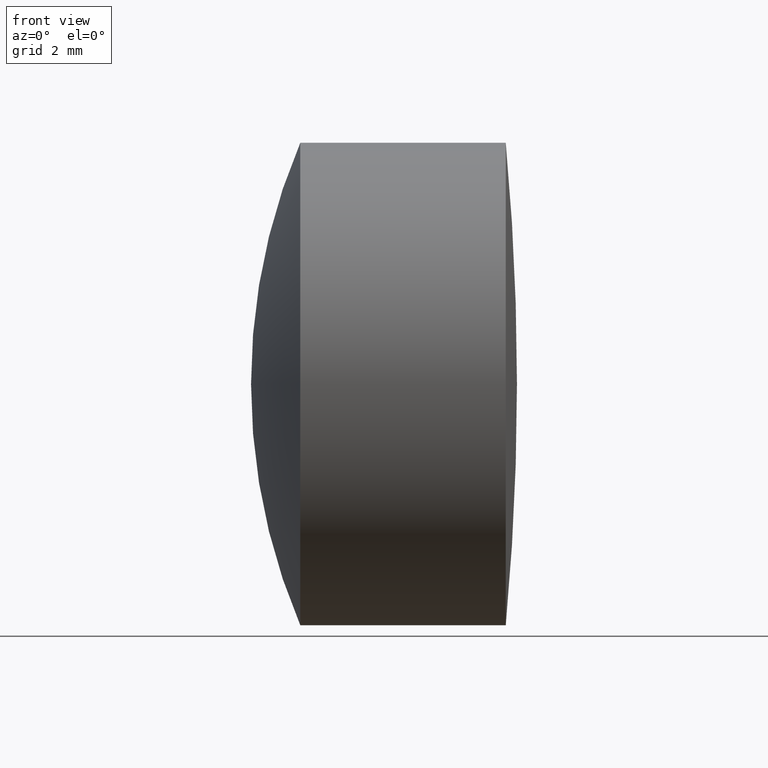
[diagram: clean part render]
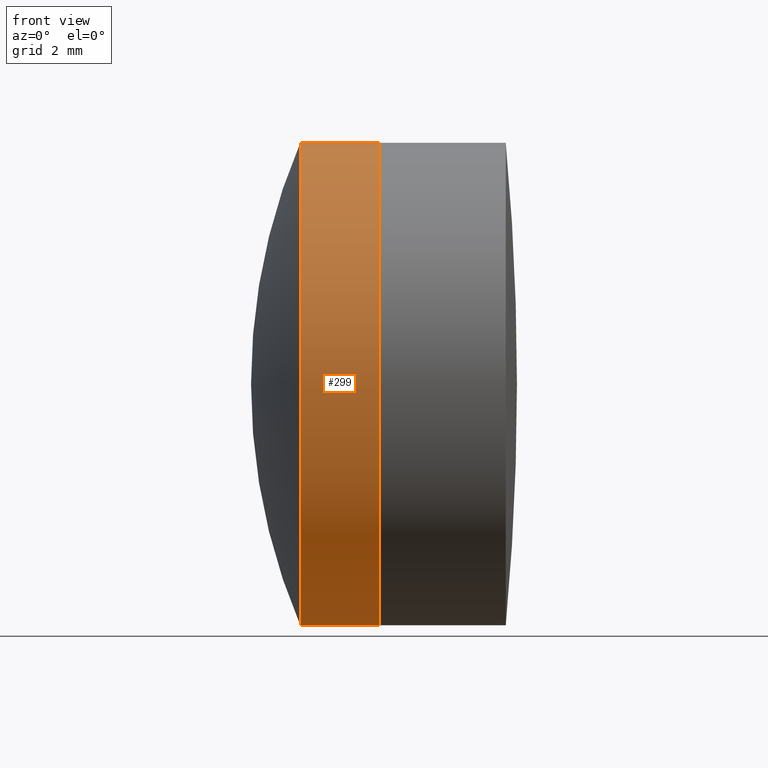
[diagram: same view with one face highlighted and labeled with its STEP entity id]
A machine part, front view. The second image highlights one B-rep face of the part: STEP entity #299.
In plain terms, the highlighted cylindrical surface (partial cylindrical patch) has radius 6.35 mm, axis along (-1, -0, -0).
Its self-contained STEP definition (entity closure, byte-faithful):
#33 = CARTESIAN_POINT ( 'NONE',  ( 272.3951664723072100, 0.0000000000000000000, 0.0000000000000000000 ) ) ;
#35 = VECTOR ( 'NONE', #88, 1000.000000000000000 ) ;
#38 = DIRECTION ( 'NONE',  ( 0.0000000000000000000, 0.0000000000000000000, 1.000000000000000000 ) ) ;
#61 = CARTESIAN_POINT ( 'NONE',  ( 270.3053497044990600, 0.0000000000000000000, 0.0000000000000000000 ) ) ;
#64 = CARTESIAN_POINT ( 'NONE',  ( 124.5233095260452400, 0.0000000000000000000, 0.0000000000000000000 ) ) ;
#69 = CARTESIAN_POINT ( 'NONE',  ( 270.3053497044990600, 7.776507174585691200E-016, -6.350000000000001400 ) ) ;
#75 = CARTESIAN_POINT ( 'NONE',  ( 124.5233095260452400, 7.776507174585689200E-016, -6.349999999999996100 ) ) ;
#79 = VERTEX_POINT ( 'NONE', #113 ) ;
#87 = ORIENTED_EDGE ( 'NONE', *, *, #295, .F. ) ;
#88 = DIRECTION ( 'NONE',  ( -1.000000000000000000, -0.0000000000000000000, -0.0000000000000000000 ) ) ;
#94 = VERTEX_POINT ( 'NONE', #69 ) ;
#99 = EDGE_CURVE ( 'NONE', #144, #167, #181, .T. ) ;
#113 = CARTESIAN_POINT ( 'NONE',  ( 270.3053497044990600, 0.0000000000000000000, 6.349999999999997900 ) ) ;
#117 = AXIS2_PLACEMENT_3D ( 'NONE', #64, #180, #38 ) ;
#119 = CARTESIAN_POINT ( 'NONE',  ( 124.5233095260452400, 0.0000000000000000000, 6.349999999999996100 ) ) ;
#120 = CARTESIAN_POINT ( 'NONE',  ( 272.3951664723072100, 0.0000000000000000000, 6.349999999999996100 ) ) ;
#138 = ORIENTED_EDGE ( 'NONE', *, *, #197, .F. ) ;
#144 = VERTEX_POINT ( 'NONE', #208 ) ;
#154 = EDGE_CURVE ( 'NONE', #167, #79, #314, .T. ) ;
#156 = ORIENTED_EDGE ( 'NONE', *, *, #99, .T. ) ;
#167 = VERTEX_POINT ( 'NONE', #120 ) ;
#180 = DIRECTION ( 'NONE',  ( -1.000000000000000000, -0.0000000000000000000, -0.0000000000000000000 ) ) ;
#181 = CIRCLE ( 'NONE', #317, 6.349999999999996100 ) ;
#194 = VECTOR ( 'NONE', #259, 1000.000000000000000 ) ;
#197 = EDGE_CURVE ( 'NONE', #94, #79, #205, .T. ) ;
#201 = DIRECTION ( 'NONE',  ( -1.000000000000000000, -0.0000000000000000000, -0.0000000000000000000 ) ) ;
#203 = FACE_OUTER_BOUND ( 'NONE', #323, .T. ) ;
#205 = CIRCLE ( 'NONE', #217, 6.349999999999996100 ) ;
#208 = CARTESIAN_POINT ( 'NONE',  ( 272.3951664723072100, 7.776507174585689200E-016, -6.349999999999996100 ) ) ;
#217 = AXIS2_PLACEMENT_3D ( 'NONE', #61, #333, #281 ) ;
#252 = DIRECTION ( 'NONE',  ( 0.0000000000000000000, 0.0000000000000000000, 1.000000000000000000 ) ) ;
#255 = LINE ( 'NONE', #75, #194 ) ;
#259 = DIRECTION ( 'NONE',  ( -1.000000000000000000, -0.0000000000000000000, -0.0000000000000000000 ) ) ;
#281 = DIRECTION ( 'NONE',  ( 0.0000000000000000000, 0.0000000000000000000, 1.000000000000000000 ) ) ;
#295 = EDGE_CURVE ( 'NONE', #144, #94, #255, .T. ) ;
#297 = CYLINDRICAL_SURFACE ( 'NONE', #117, 6.349999999999996100 ) ;
#299 = ADVANCED_FACE ( 'NONE', ( #203 ), #297, .T. ) ;
#301 = ORIENTED_EDGE ( 'NONE', *, *, #154, .T. ) ;
#314 = LINE ( 'NONE', #119, #35 ) ;
#317 = AXIS2_PLACEMENT_3D ( 'NONE', #33, #201, #252 ) ;
#323 = EDGE_LOOP ( 'NONE', ( #87, #156, #301, #138 ) ) ;
#333 = DIRECTION ( 'NONE',  ( -1.000000000000000000, -0.0000000000000000000, -0.0000000000000000000 ) ) ;